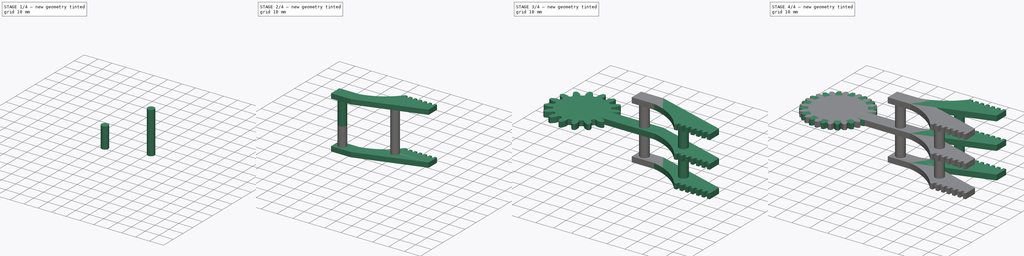
[diagram: build sequence overview — one tinted view per stage of 4, left to right]
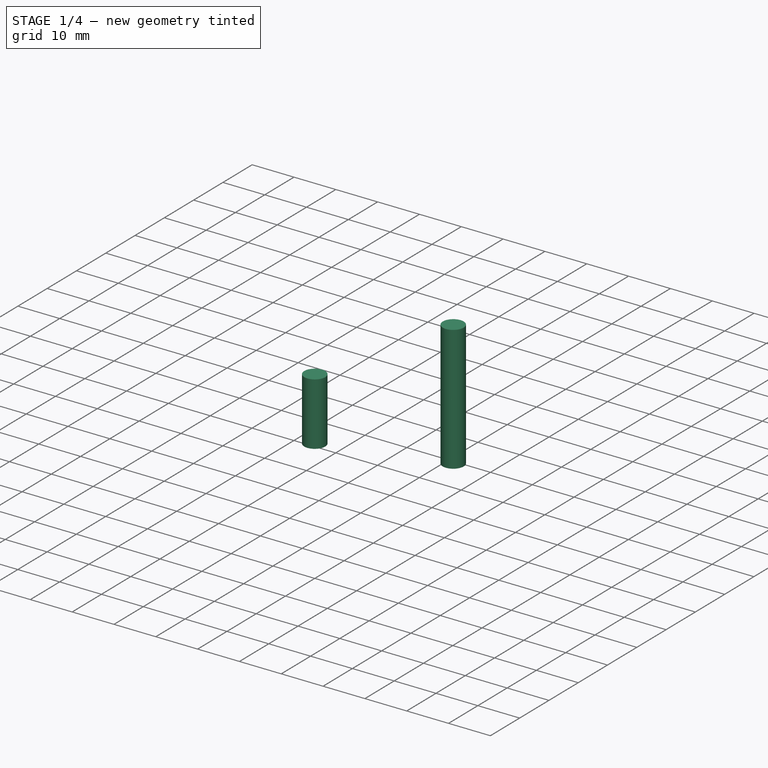
[diagram: stage 1 of 4 — iso view after this stage's code; geometry added in this stage tinted green]
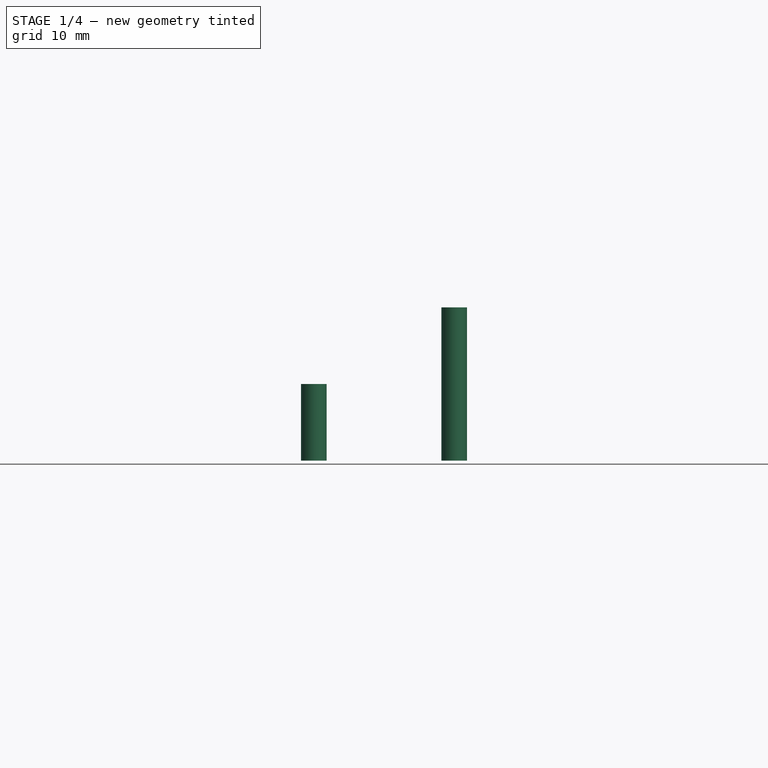
[diagram: stage 1 of 4 — front view after this stage's code; geometry added in this stage tinted green]
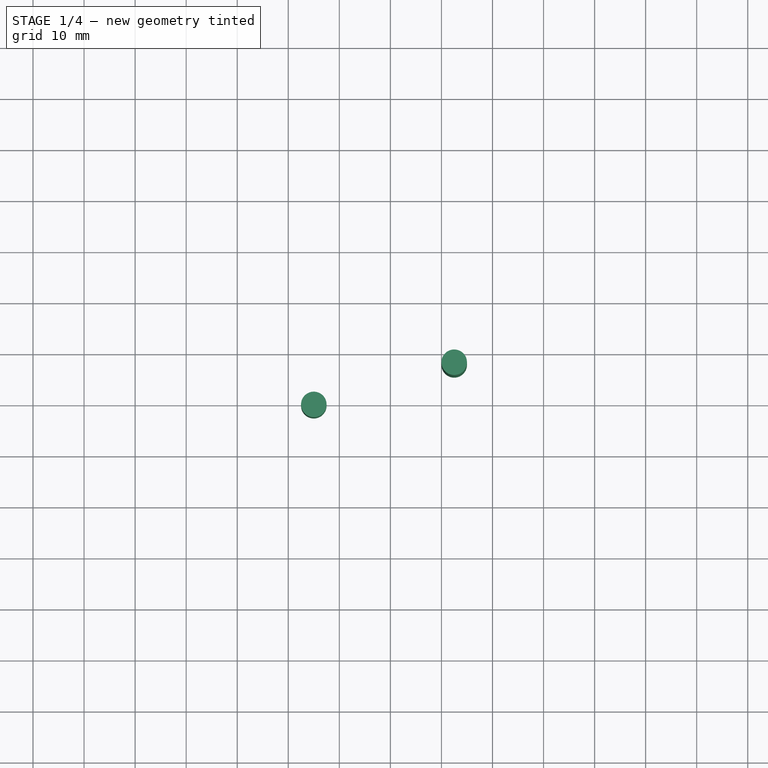
[diagram: stage 1 of 4 — top view after this stage's code; geometry added in this stage tinted green]
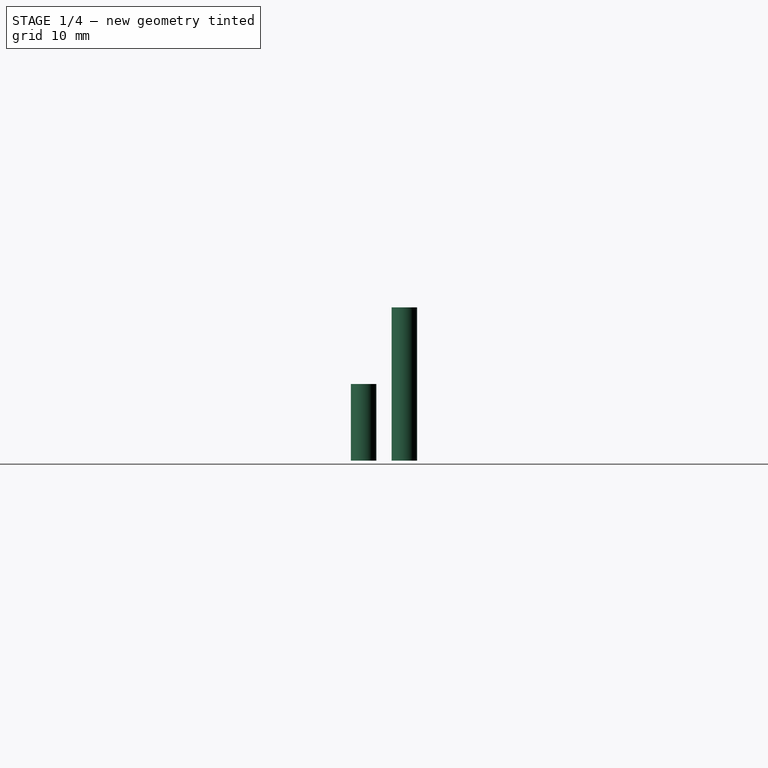
[diagram: stage 1 of 4 — right view after this stage's code; geometry added in this stage tinted green]
FCSTD DOCUMENT  (FreeCAD 0.15R4671 (Git))
Label: hand
License: All rights reserved
LicenseURL: http://en.wikipedia.org/wiki/All_rights_reserved
objects: PartDesign::Pad×9, Sketcher::SketchObject×8, Part::MultiFuse×3, Part::Part2DObjectPython×2, Part::Mirroring×1
note: 32 computed .brp shape members not serialized (recipe doc carries the construction recipe); baked Part::Feature solids carry a one-line shape summary decoded from their .brp

FEATURE [PartDesign::Pad] Pad010
  Length = 15
  Length2 = 100
  Placement = pos=(0,0,-15) rot=(0,0,1;0rad)
  Sketch = -> Sketch006
  Type = 0
FEATURE [Sketcher::SketchObject] Sketch007
  sketch-geometry (2):
    g0: GeomPoint [constr] X=62.5 Y=8 Z=0
    g1: Circle CenterX=62.5 CenterY=8 CenterZ=0 NormalX=0 NormalY=0 NormalZ=1 Radius=2.5
  constraints (4):
    c: DistanceX(g-1,g0) = 62.5
    c: DistanceY(g-1,g0) = 8
    c: Radius(g1) = 2.5
    c: Coincident(g1,g0)
FEATURE [Sketcher::SketchObject] Sketch008
  Placement = pos=(0,0,-15) rot=(0,0,1;0rad)
  sketch-geometry (2):
    g0: GeomPoint [constr] X=62.5 Y=8 Z=0
    g1: Circle CenterX=62.5 CenterY=8 CenterZ=0 NormalX=0 NormalY=0 NormalZ=1 Radius=2.5
  constraints (4):
    c: DistanceX(g-1,g0) = 62.5
    c: DistanceY(g-1,g0) = 8
    c: Radius(g1) = 2.5
    c: Coincident(g1,g0)
FEATURE [PartDesign::Pad] Pad011
  Length = 15
  Length2 = 100
  Sketch = -> Sketch007
  Type = 0
FEATURE [PartDesign::Pad] Pad012
  Length = 15
  Length2 = 100
  Placement = pos=(0,0,-15) rot=(0,0,1;0rad)
  Sketch = -> Sketch008
  Type = 0
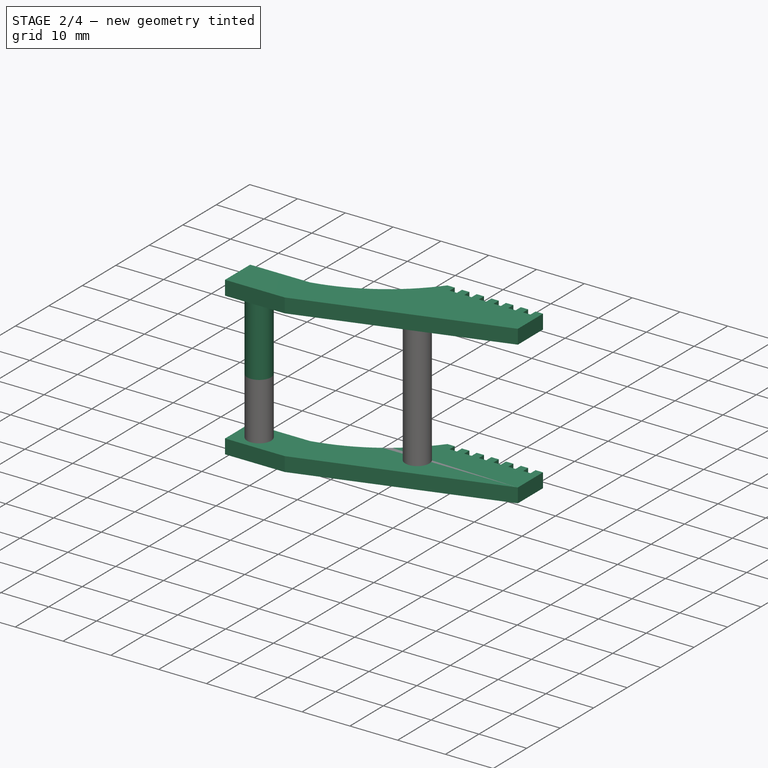
[diagram: stage 2 of 4 — iso view after this stage's code; geometry added in this stage tinted green]
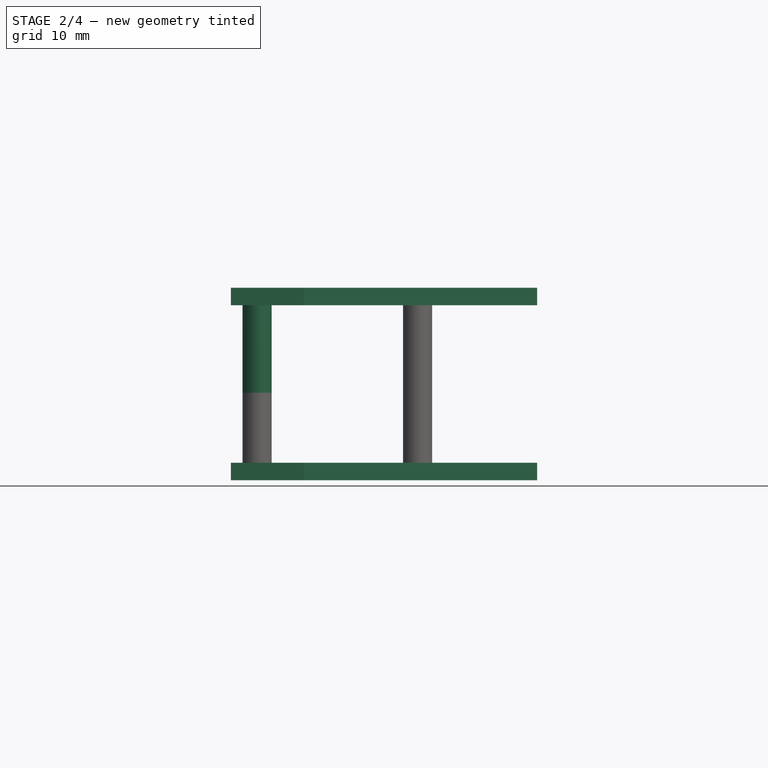
[diagram: stage 2 of 4 — front view after this stage's code; geometry added in this stage tinted green]
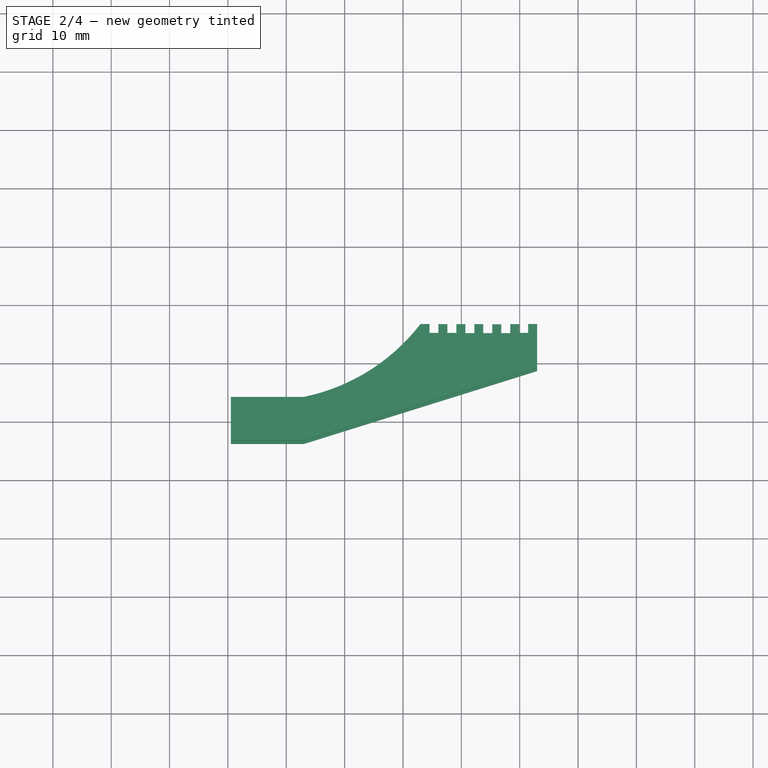
[diagram: stage 2 of 4 — top view after this stage's code; geometry added in this stage tinted green]
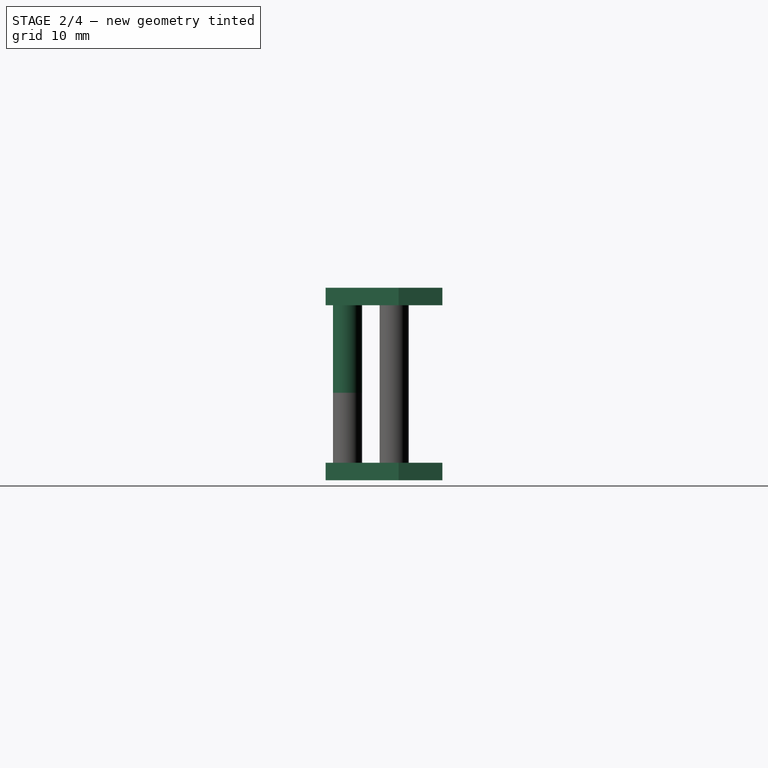
[diagram: stage 2 of 4 — right view after this stage's code; geometry added in this stage tinted green]
FEATURE [Sketcher::SketchObject] Sketch004
  Placement = pos=(0,0,-15) rot=(0,0,1;0rad)
  sketch-geometry (48):
    g0: LineSegment StartX=30.5 StartY=3.75 StartZ=0 EndX=43 EndY=3.75 EndZ=0
    g1: LineSegment [constr] StartX=43 StartY=3.75 StartZ=0 EndX=43 EndY=-3.75 EndZ=0
    g2: LineSegment StartX=43 StartY=-3.75 StartZ=0 EndX=30.5 EndY=-3.75 EndZ=0
    g3: LineSegment StartX=30.5 StartY=-3.75 StartZ=0 EndX=30.5 EndY=3.75 EndZ=0
    g4: GeomPoint [constr] X=83 Y=8.75 Z=0
    g5: LineSegment StartX=83 StartY=8.75 StartZ=0 EndX=43 EndY=-3.75 EndZ=0
    g6: GeomPoint [constr] X=83 Y=16.25 Z=0
    g7: LineSegment StartX=83 StartY=8.75 StartZ=0 EndX=83 EndY=16.25 EndZ=0
    g8: GeomPoint [constr] X=63 Y=16.25 Z=0
    g9: ArcOfCircle CenterX=36.2068 CenterY=36.869 CenterZ=0 NormalX=0 NormalY=0 NormalZ=1 Radius=33.8085 StartAngle=4.9147 EndAngle=5.62728
    g10: GeomPoint [constr] X=64.5388 Y=16.25 Z=0
    g11: GeomPoint [constr] X=66.0768 Y=16.2255 Z=0
    g12: GeomPoint [constr] X=67.6148 Y=16.2255 Z=0
    g13: GeomPoint [constr] X=70.6908 Y=16.2255 Z=0
    g14: GeomPoint [constr] X=72.2288 Y=16.2292 Z=0
    g15: GeomPoint [constr] X=73.7668 Y=16.2292 Z=0
    g16: GeomPoint [constr] X=75.3048 Y=16.1985 Z=0
    g17: GeomPoint [constr] X=76.8428 Y=16.1985 Z=0
    g18: GeomPoint [constr] X=78.3808 Y=16.2336 Z=0
    g19: GeomPoint [constr] X=79.9188 Y=16.2336 Z=0
    g20: GeomPoint [constr] X=81.4568 Y=16.25 Z=0
    g21: GeomPoint [constr] X=64.5388 Y=14.7197 Z=0
    g22: GeomPoint [constr] X=83.7926 Y=12.076 Z=0
    g23: LineSegment StartX=63 StartY=16.25 StartZ=0 EndX=64.5388 EndY=16.25 EndZ=0
    g24: LineSegment StartX=66.0768 StartY=16.2255 StartZ=0 EndX=66.0768 EndY=14.7197 EndZ=0
    g25: LineSegment StartX=67.6148 StartY=16.2255 StartZ=0 EndX=67.6148 EndY=14.7197 EndZ=0
    g26: LineSegment StartX=64.5388 StartY=16.25 StartZ=0 EndX=64.5388 EndY=14.7197 EndZ=0
    g27: LineSegment StartX=69.1528 StartY=16.2255 StartZ=0 EndX=69.1528 EndY=14.7197 EndZ=0
    g28: LineSegment StartX=70.6908 StartY=16.2255 StartZ=0 EndX=70.6908 EndY=14.6814 EndZ=0
    g29: LineSegment StartX=72.2288 StartY=16.2292 StartZ=0 EndX=72.2288 EndY=14.6814 EndZ=0
    g30: LineSegment StartX=73.7668 StartY=16.2292 StartZ=0 EndX=73.7668 EndY=14.6814 EndZ=0
    g31: LineSegment StartX=64.5388 StartY=14.7197 StartZ=0 EndX=66.0768 EndY=14.7197 EndZ=0
    g32: LineSegment StartX=69.1528 StartY=16.2255 StartZ=0 EndX=70.6908 EndY=16.2255 EndZ=0
    g33: LineSegment StartX=72.2288 StartY=16.2292 StartZ=0 EndX=73.7668 EndY=16.2292 EndZ=0
    g34: LineSegment StartX=75.3048 StartY=16.1985 StartZ=0 EndX=76.8428 EndY=16.1985 EndZ=0
    g35: LineSegment StartX=66.0768 StartY=16.2255 StartZ=0 EndX=67.6148 EndY=16.2255 EndZ=0
    g36: LineSegment StartX=78.3808 StartY=16.2336 StartZ=0 EndX=79.9188 EndY=16.2336 EndZ=0
    g37: LineSegment StartX=75.3048 StartY=16.1985 StartZ=0 EndX=75.3048 EndY=14.6814 EndZ=0
    g38: LineSegment StartX=76.8428 StartY=16.1985 StartZ=0 EndX=76.8428 EndY=14.6814 EndZ=0
    g39: LineSegment StartX=78.3808 StartY=16.2336 StartZ=0 EndX=78.3808 EndY=14.6814 EndZ=0
    g40: LineSegment StartX=67.6148 StartY=14.7197 StartZ=0 EndX=69.1528 EndY=14.7197 EndZ=0
    g41: LineSegment StartX=70.6908 StartY=14.6814 StartZ=0 EndX=72.2288 EndY=14.6814 EndZ=0
    g42: LineSegment StartX=73.7668 StartY=14.6814 StartZ=0 EndX=75.3048 EndY=14.6814 EndZ=0
    g43: LineSegment StartX=76.8428 StartY=14.6814 StartZ=0 EndX=78.3808 EndY=14.6814 EndZ=0
    g44: LineSegment StartX=83 StartY=16.25 StartZ=0 EndX=81.4568 EndY=16.25 EndZ=0
    g45: LineSegment StartX=81.4568 StartY=16.25 StartZ=0 EndX=81.4568 EndY=14.7197 EndZ=0
    g46: LineSegment StartX=79.9188 StartY=16.2336 StartZ=0 EndX=79.9188 EndY=14.7197 EndZ=0
    g47: LineSegment StartX=79.9188 StartY=14.7197 StartZ=0 EndX=81.4568 EndY=14.7197 EndZ=0
  constraints (99):
    c: Coincident(g0,g1)
    c: Coincident(g1,g2)
    c: Coincident(g2,g3)
    c: Coincident(g3,g0)
    c: Horizontal(g0)
    c: Horizontal(g2)
    c: Vertical(g1)
    c: Vertical(g3)
    c: DistanceY(g0,g1) = -7.5
    c: DistanceX(g0,g0) = 12.5
    c: DistanceY(g4,g1) = -12.5
    c: Symmetric(g0,g1,g-1)
    c: DistanceX(g4,g1) = -40
    c: Coincident(g5,g4)
    c: Coincident(g5,g1)
    c: DistanceY(g4,g6) = 7.5
    c: Coincident(g7,g4)
    c: Coincident(g7,g6)
    c: Parallel(g7,g1)
    c: DistanceX(g8,g6) = 20
    c: Coincident(g9,g0)
    c: Coincident(g9,g8)
    c: Coincident(g23,g8)
    c: Coincident(g23,g10)
    c: Coincident(g24,g11)
    c: Vertical(g24)
    c: Coincident(g25,g12)
    c: Vertical(g25)
    c: Coincident(g26,g10)
    c: Coincident(g26,g21)
    c: Vertical(g26)
    c: Vertical(g27)
    c: Coincident(g28,g13)
    c: Vertical(g28)
    c: Coincident(g29,g14)
    c: Vertical(g29)
    c: Coincident(g30,g15)
    c: Vertical(g30)
    c: DistanceX(g10,g8) = -1.53878
    c: DistanceX(g10,g11) = 1.538
    c: DistanceX(g11,g12) = 1.538
    c: DistanceX(g12,g27) = 1.538
    c: DistanceX(g27,g13) = 1.538
    c: DistanceX(g13,g14) = 1.538
    c: DistanceX(g14,g15) = 1.538
    c: DistanceX(g15,g16) = 1.538
    c: DistanceX(g16,g17) = 1.538
    c: DistanceX(g17,g18) = 1.538
    c: DistanceX(g18,g19) = 1.538
    c: DistanceX(g19,g20) = 1.538
    c: Coincident(g31,g21)
    c: Coincident(g31,g24)
    c: Horizontal(g31)
    c: Coincident(g32,g13)
    c: Horizontal(g32)
    c: Coincident(g33,g14)
    c: Coincident(g33,g15)
    c: Horizontal(g33)
    c: Coincident(g34,g17)
    c: Horizontal(g34)
    c: Coincident(g35,g11)
    c: Coincident(g35,g12)
    c: Horizontal(g35)
    c: Coincident(g36,g18)
    c: Coincident(g36,g19)
    c: Horizontal(g36)
    c: Coincident(g34,g16)
    c: Coincident(g32,g27)
    c: Coincident(g37,g16)
    c: Vertical(g37)
    c: Coincident(g38,g17)
    c: Vertical(g38)
    c: Coincident(g39,g18)
    c: Vertical(g39)
    c: Coincident(g40,g25)
    c: Coincident(g40,g27)
    c: Horizontal(g40)
    c: Coincident(g41,g29)
    c: Horizontal(g41)
    c: Coincident(g42,g37)
    c: Horizontal(g42)
    c: Coincident(g43,g38)
    c: Coincident(g43,g39)
    c: Horizontal(g43)
    c: Coincident(g30,g42)
    c: Coincident(g41,g28)
    c: Coincident(g44,g6)
    c: Coincident(g44,g20)
    c: Horizontal(g44)
    c: Coincident(g45,g20)
    c: Vertical(g45)
    c: Horizontal(g23)
    c: DistanceY(g8,g0) = -12.5
    c: Coincident(g46,g19)
    c: Vertical(g46)
    c: Coincident(g47,g46)
    c: Coincident(g47,g45)
    c: Horizontal(g47)
    c: DistanceX(g-1,g2) = 30.5
FEATURE [PartDesign::Pad] Pad007
  Length = 3
  Length2 = 100
  Placement = pos=(0,0,15) rot=(0,0,1;0rad)
  Sketch = -> Sketch003
  Type = 0
FEATURE [PartDesign::Pad] Pad008
  Length = 3
  Length2 = 100
  Placement = pos=(0,0,-15) rot=(0,0,1;0rad)
  Sketch = -> Sketch004
  Type = 0
FEATURE [Sketcher::SketchObject] Sketch005
  sketch-geometry (2):
    g0: GeomPoint [constr] X=35 Y=0 Z=0
    g1: Circle CenterX=35 CenterY=0 CenterZ=0 NormalX=0 NormalY=0 NormalZ=1 Radius=2.5
  constraints (4):
    c: PointOnObject(g0,g-1)
    c: DistanceX(g-1,g0) = 35
    c: Coincident(g1,g0)
    c: Radius(g1) = 2.5
FEATURE [Sketcher::SketchObject] Sketch006
  Placement = pos=(0,0,-15) rot=(0,0,1;0rad)
  sketch-geometry (2):
    g0: GeomPoint [constr] X=35 Y=0 Z=0
    g1: Circle CenterX=35 CenterY=0 CenterZ=0 NormalX=0 NormalY=0 NormalZ=1 Radius=2.5
  constraints (4):
    c: PointOnObject(g0,g-1)
    c: DistanceX(g-1,g0) = 35
    c: Coincident(g1,g0)
    c: Radius(g1) = 2.5
FEATURE [PartDesign::Pad] Pad009
  Length = 15
  Length2 = 100
  Sketch = -> Sketch005
  Type = 0
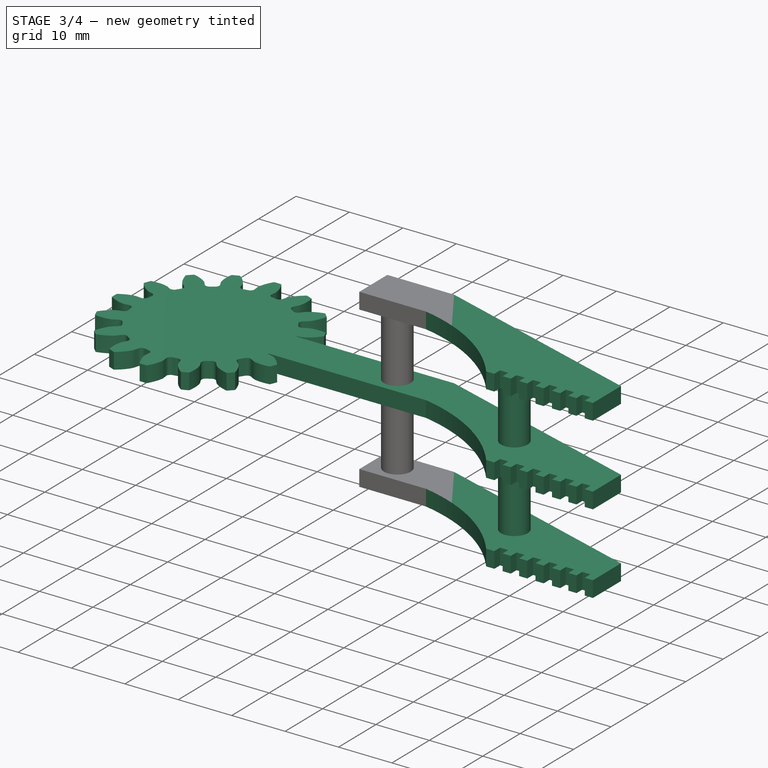
[diagram: stage 3 of 4 — iso view after this stage's code; geometry added in this stage tinted green]
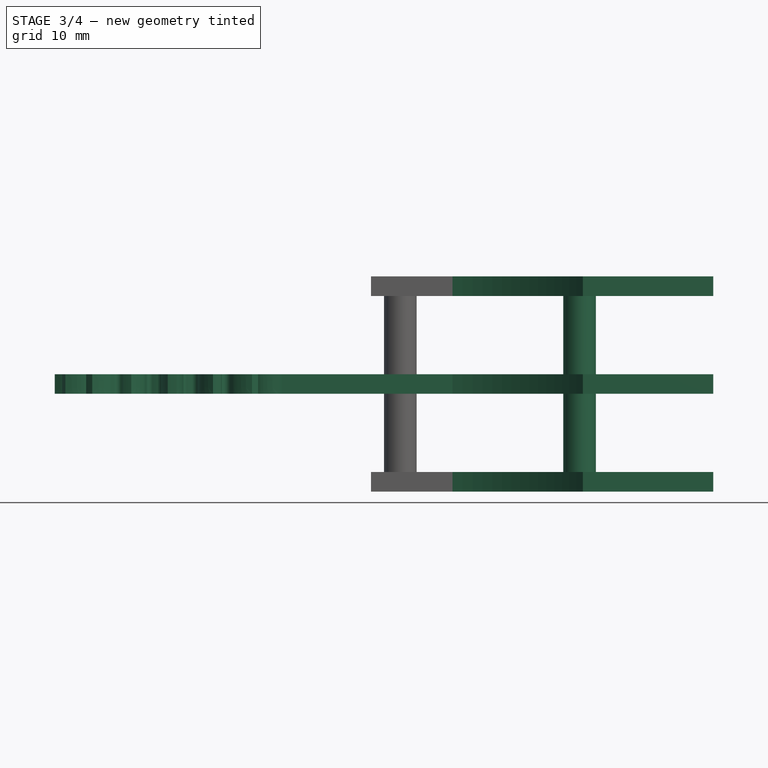
[diagram: stage 3 of 4 — front view after this stage's code; geometry added in this stage tinted green]
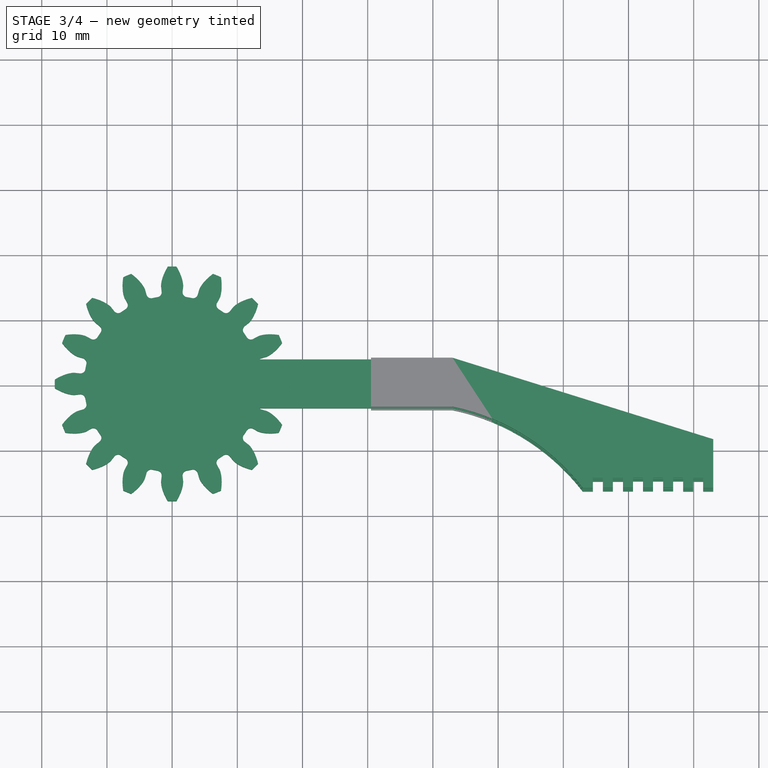
[diagram: stage 3 of 4 — top view after this stage's code; geometry added in this stage tinted green]
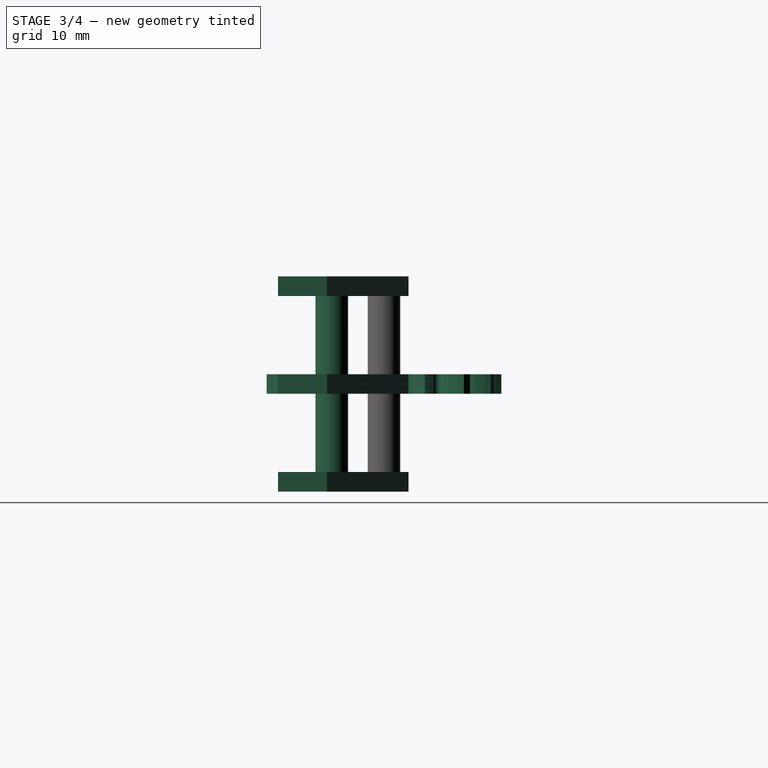
[diagram: stage 3 of 4 — right view after this stage's code; geometry added in this stage tinted green]
FEATURE [Part::Part2DObjectPython] InvoluteGear  # Draft 2D object (typed FeaturePython)
  ExternalGear = true
  HighPrecision = true
  Modules = 2
  NumberOfTeeth = 16
  Placement = pos=(0,0,0) rot=(0,0,1;0.19635rad)
  PressureAngle = 20
FEATURE [Part::Part2DObjectPython] InvoluteGear001  # Draft 2D object (typed FeaturePython)
  ExternalGear = true
  HighPrecision = true
  Modules = 2
  NumberOfTeeth = 16
  PressureAngle = 20
FEATURE [Sketcher::SketchObject] Sketch002
  sketch-geometry (48):
    g0: LineSegment StartX=13 StartY=3.75 StartZ=0 EndX=43 EndY=3.75 EndZ=0
    g1: LineSegment [constr] StartX=43 StartY=3.75 StartZ=0 EndX=43 EndY=-3.75 EndZ=0
    g2: LineSegment StartX=43 StartY=-3.75 StartZ=0 EndX=13 EndY=-3.75 EndZ=0
    g3: LineSegment StartX=13 StartY=-3.75 StartZ=0 EndX=13 EndY=3.75 EndZ=0
    g4: GeomPoint [constr] X=83 Y=8.75 Z=0
    g5: LineSegment StartX=83 StartY=8.75 StartZ=0 EndX=43 EndY=-3.75 EndZ=0
    g6: GeomPoint [constr] X=83 Y=16.25 Z=0
    g7: LineSegment StartX=83 StartY=8.75 StartZ=0 EndX=83 EndY=16.25 EndZ=0
    g8: GeomPoint [constr] X=63 Y=16.25 Z=0
    g9: ArcOfCircle CenterX=36.1751 CenterY=36.9198 CenterZ=0 NormalX=0 NormalY=0 NormalZ=1 Radius=33.8647 StartAngle=4.91531 EndAngle=5.62666
    g10: GeomPoint [constr] X=64.5388 Y=16.25 Z=0
    g11: GeomPoint [constr] X=66.0768 Y=16.2255 Z=0
    g12: GeomPoint [constr] X=67.6148 Y=16.2255 Z=0
    g13: GeomPoint [constr] X=70.6908 Y=16.2255 Z=0
    g14: GeomPoint [constr] X=72.2288 Y=16.2292 Z=0
    g15: GeomPoint [constr] X=73.7668 Y=16.2292 Z=0
    g16: GeomPoint [constr] X=75.3048 Y=16.1985 Z=0
    g17: GeomPoint [constr] X=76.8428 Y=16.1985 Z=0
    g18: GeomPoint [constr] X=78.3808 Y=16.2336 Z=0
    g19: GeomPoint [constr] X=79.9188 Y=16.2336 Z=0
    g20: GeomPoint [constr] X=81.4568 Y=16.25 Z=0
    g21: GeomPoint [constr] X=64.5388 Y=14.7197 Z=0
    g22: GeomPoint [constr] X=83.7926 Y=12.076 Z=0
    g23: LineSegment StartX=63 StartY=16.25 StartZ=0 EndX=64.5388 EndY=16.25 EndZ=0
    g24: LineSegment StartX=66.0768 StartY=16.2255 StartZ=0 EndX=66.0768 EndY=14.7197 EndZ=0
    g25: LineSegment StartX=67.6148 StartY=16.2255 StartZ=0 EndX=67.6148 EndY=14.7197 EndZ=0
    g26: LineSegment StartX=64.5388 StartY=16.25 StartZ=0 EndX=64.5388 EndY=14.7197 EndZ=0
    g27: LineSegment StartX=69.1528 StartY=16.2255 StartZ=0 EndX=69.1528 EndY=14.7197 EndZ=0
    g28: LineSegment StartX=70.6908 StartY=16.2255 StartZ=0 EndX=70.6908 EndY=14.6814 EndZ=0
    g29: LineSegment StartX=72.2288 StartY=16.2292 StartZ=0 EndX=72.2288 EndY=14.6814 EndZ=0
    g30: LineSegment StartX=73.7668 StartY=16.2292 StartZ=0 EndX=73.7668 EndY=14.6814 EndZ=0
    g31: LineSegment StartX=64.5388 StartY=14.7197 StartZ=0 EndX=66.0768 EndY=14.7197 EndZ=0
    g32: LineSegment StartX=69.1528 StartY=16.2255 StartZ=0 EndX=70.6908 EndY=16.2255 EndZ=0
    g33: LineSegment StartX=72.2288 StartY=16.2292 StartZ=0 EndX=73.7668 EndY=16.2292 EndZ=0
    g34: LineSegment StartX=75.3048 StartY=16.1985 StartZ=0 EndX=76.8428 EndY=16.1985 EndZ=0
    g35: LineSegment StartX=66.0768 StartY=16.2255 StartZ=0 EndX=67.6148 EndY=16.2255 EndZ=0
    g36: LineSegment StartX=78.3808 StartY=16.2336 StartZ=0 EndX=79.9188 EndY=16.2336 EndZ=0
    g37: LineSegment StartX=75.3048 StartY=16.1985 StartZ=0 EndX=75.3048 EndY=14.6814 EndZ=0
    g38: LineSegment StartX=76.8428 StartY=16.1985 StartZ=0 EndX=76.8428 EndY=14.6814 EndZ=0
    g39: LineSegment StartX=78.3808 StartY=16.2336 StartZ=0 EndX=78.3808 EndY=14.6814 EndZ=0
    g40: LineSegment StartX=67.6148 StartY=14.7197 StartZ=0 EndX=69.1528 EndY=14.7197 EndZ=0
    g41: LineSegment StartX=70.6908 StartY=14.6814 StartZ=0 EndX=72.2288 EndY=14.6814 EndZ=0
    g42: LineSegment StartX=73.7668 StartY=14.6814 StartZ=0 EndX=75.3048 EndY=14.6814 EndZ=0
    g43: LineSegment StartX=76.8428 StartY=14.6814 StartZ=0 EndX=78.3808 EndY=14.6814 EndZ=0
    g44: LineSegment StartX=83 StartY=16.25 StartZ=0 EndX=81.4568 EndY=16.25 EndZ=0
    g45: LineSegment StartX=81.4568 StartY=16.25 StartZ=0 EndX=81.4568 EndY=14.7197 EndZ=0
    g46: LineSegment StartX=79.9188 StartY=16.2336 StartZ=0 EndX=79.9188 EndY=14.7197 EndZ=0
    g47: LineSegment StartX=79.9188 StartY=14.7197 StartZ=0 EndX=81.4568 EndY=14.7197 EndZ=0
  constraints (99):
    c: Coincident(g0,g1)
    c: Coincident(g1,g2)
    c: Coincident(g2,g3)
    c: Coincident(g3,g0)
    c: Horizontal(g0)
    c: Horizontal(g2)
    c: Vertical(g1)
    c: Vertical(g3)
    c: DistanceY(g0,g1) = -7.5
    c: DistanceX(g0,g0) = 30
    c: DistanceY(g4,g1) = -12.5
    c: Symmetric(g0,g1,g-1)
    c: DistanceX(g4,g1) = -40
    c: Coincident(g5,g4)
    c: Coincident(g5,g1)
    c: DistanceY(g4,g6) = 7.5
    c: Coincident(g7,g4)
    c: Coincident(g7,g6)
    c: Parallel(g7,g1)
    c: DistanceX(g8,g6) = 20
    c: Coincident(g9,g0)
    c: Coincident(g9,g8)
    c: Coincident(g23,g8)
    c: Coincident(g23,g10)
    c: Coincident(g24,g11)
    c: Vertical(g24)
    c: Coincident(g25,g12)
    c: Vertical(g25)
    c: Coincident(g26,g10)
    c: Coincident(g26,g21)
    c: Vertical(g26)
    c: Vertical(g27)
    c: Coincident(g28,g13)
    c: Vertical(g28)
    c: Coincident(g29,g14)
    c: Vertical(g29)
    c: Coincident(g30,g15)
    c: Vertical(g30)
    c: DistanceX(g10,g8) = -1.53878
    c: DistanceX(g10,g11) = 1.538
    c: DistanceX(g11,g12) = 1.538
    c: DistanceX(g12,g27) = 1.538
    c: DistanceX(g27,g13) = 1.538
    c: DistanceX(g13,g14) = 1.538
    c: DistanceX(g14,g15) = 1.538
    c: DistanceX(g15,g16) = 1.538
    c: DistanceX(g16,g17) = 1.538
    c: DistanceX(g17,g18) = 1.538
    c: DistanceX(g18,g19) = 1.538
    c: DistanceX(g19,g20) = 1.538
    c: Coincident(g31,g21)
    c: Coincident(g31,g24)
    c: Horizontal(g31)
    c: Coincident(g32,g13)
    c: Horizontal(g32)
    c: Coincident(g33,g14)
    c: Coincident(g33,g15)
    c: Horizontal(g33)
    c: Coincident(g34,g17)
    c: Horizontal(g34)
    c: Coincident(g35,g11)
    c: Coincident(g35,g12)
    c: Horizontal(g35)
    c: Coincident(g36,g18)
    c: Coincident(g36,g19)
    c: Horizontal(g36)
    c: Coincident(g34,g16)
    c: Coincident(g32,g27)
    c: Coincident(g37,g16)
    c: Vertical(g37)
    c: Coincident(g38,g17)
    c: Vertical(g38)
    c: Coincident(g39,g18)
    c: Vertical(g39)
    c: Coincident(g40,g25)
    c: Coincident(g40,g27)
    c: Horizontal(g40)
    c: Coincident(g41,g29)
    c: Horizontal(g41)
    c: Coincident(g42,g37)
    c: Horizontal(g42)
    c: Coincident(g43,g38)
    c: Coincident(g43,g39)
    c: Horizontal(g43)
    c: Coincident(g30,g42)
    c: Coincident(g41,g28)
    c: Coincident(g44,g6)
    c: Coincident(g44,g20)
    c: Horizontal(g44)
    c: Coincident(g45,g20)
    c: Vertical(g45)
    c: Horizontal(g23)
    c: DistanceY(g8,g0) = -12.5
    c: Coincident(g46,g19)
    c: Vertical(g46)
    c: Coincident(g47,g46)
    c: Coincident(g47,g45)
    c: Horizontal(g47)
    c: DistanceX(g-1,g2) = 13
FEATURE [PartDesign::Pad] Pad003
  Length = 3
  Length2 = 100
  Sketch = -> InvoluteGear001
  Type = 0
FEATURE [Sketcher::SketchObject] Sketch003
  Placement = pos=(0,0,15) rot=(0,0,1;0rad)
  sketch-geometry (48):
    g0: LineSegment StartX=30.5 StartY=3.75 StartZ=0 EndX=43 EndY=3.75 EndZ=0
    g1: LineSegment [constr] StartX=43 StartY=3.75 StartZ=0 EndX=43 EndY=-3.75 EndZ=0
    g2: LineSegment StartX=43 StartY=-3.75 StartZ=0 EndX=30.5 EndY=-3.75 EndZ=0
    g3: LineSegment StartX=30.5 StartY=-3.75 StartZ=0 EndX=30.5 EndY=3.75 EndZ=0
    g4: GeomPoint [constr] X=83 Y=8.75 Z=0
    g5: LineSegment StartX=83 StartY=8.75 StartZ=0 EndX=43 EndY=-3.75 EndZ=0
    g6: GeomPoint [constr] X=83 Y=16.25 Z=0
    g7: LineSegment StartX=83 StartY=8.75 StartZ=0 EndX=83 EndY=16.25 EndZ=0
    g8: GeomPoint [constr] X=63 Y=16.25 Z=0
    g9: ArcOfCircle CenterX=36.2068 CenterY=36.869 CenterZ=0 NormalX=0 NormalY=0 NormalZ=1 Radius=33.8085 StartAngle=4.9147 EndAngle=5.62728
    g10: GeomPoint [constr] X=64.5388 Y=16.25 Z=0
    g11: GeomPoint [constr] X=66.0768 Y=16.2255 Z=0
    g12: GeomPoint [constr] X=67.6148 Y=16.2255 Z=0
    g13: GeomPoint [constr] X=70.6908 Y=16.2255 Z=0
    g14: GeomPoint [constr] X=72.2288 Y=16.2292 Z=0
    g15: GeomPoint [constr] X=73.7668 Y=16.2292 Z=0
    g16: GeomPoint [constr] X=75.3048 Y=16.1985 Z=0
    g17: GeomPoint [constr] X=76.8428 Y=16.1985 Z=0
    g18: GeomPoint [constr] X=78.3808 Y=16.2336 Z=0
    g19: GeomPoint [constr] X=79.9188 Y=16.2336 Z=0
    g20: GeomPoint [constr] X=81.4568 Y=16.25 Z=0
    g21: GeomPoint [constr] X=64.5388 Y=14.7197 Z=0
    g22: GeomPoint [constr] X=83.7926 Y=12.076 Z=0
    g23: LineSegment StartX=63 StartY=16.25 StartZ=0 EndX=64.5388 EndY=16.25 EndZ=0
    g24: LineSegment StartX=66.0768 StartY=16.2255 StartZ=0 EndX=66.0768 EndY=14.7197 EndZ=0
    g25: LineSegment StartX=67.6148 StartY=16.2255 StartZ=0 EndX=67.6148 EndY=14.7197 EndZ=0
    g26: LineSegment StartX=64.5388 StartY=16.25 StartZ=0 EndX=64.5388 EndY=14.7197 EndZ=0
    g27: LineSegment StartX=69.1528 StartY=16.2255 StartZ=0 EndX=69.1528 EndY=14.7197 EndZ=0
    g28: LineSegment StartX=70.6908 StartY=16.2255 StartZ=0 EndX=70.6908 EndY=14.6814 EndZ=0
    g29: LineSegment StartX=72.2288 StartY=16.2292 StartZ=0 EndX=72.2288 EndY=14.6814 EndZ=0
    g30: LineSegment StartX=73.7668 StartY=16.2292 StartZ=0 EndX=73.7668 EndY=14.6814 EndZ=0
    g31: LineSegment StartX=64.5388 StartY=14.7197 StartZ=0 EndX=66.0768 EndY=14.7197 EndZ=0
    g32: LineSegment StartX=69.1528 StartY=16.2255 StartZ=0 EndX=70.6908 EndY=16.2255 EndZ=0
    g33: LineSegment StartX=72.2288 StartY=16.2292 StartZ=0 EndX=73.7668 EndY=16.2292 EndZ=0
    g34: LineSegment StartX=75.3048 StartY=16.1985 StartZ=0 EndX=76.8428 EndY=16.1985 EndZ=0
    g35: LineSegment StartX=66.0768 StartY=16.2255 StartZ=0 EndX=67.6148 EndY=16.2255 EndZ=0
    g36: LineSegment StartX=78.3808 StartY=16.2336 StartZ=0 EndX=79.9188 EndY=16.2336 EndZ=0
    g37: LineSegment StartX=75.3048 StartY=16.1985 StartZ=0 EndX=75.3048 EndY=14.6814 EndZ=0
    g38: LineSegment StartX=76.8428 StartY=16.1985 StartZ=0 EndX=76.8428 EndY=14.6814 EndZ=0
    g39: LineSegment StartX=78.3808 StartY=16.2336 StartZ=0 EndX=78.3808 EndY=14.6814 EndZ=0
    g40: LineSegment StartX=67.6148 StartY=14.7197 StartZ=0 EndX=69.1528 EndY=14.7197 EndZ=0
    g41: LineSegment StartX=70.6908 StartY=14.6814 StartZ=0 EndX=72.2288 EndY=14.6814 EndZ=0
    g42: LineSegment StartX=73.7668 StartY=14.6814 StartZ=0 EndX=75.3048 EndY=14.6814 EndZ=0
    g43: LineSegment StartX=76.8428 StartY=14.6814 StartZ=0 EndX=78.3808 EndY=14.6814 EndZ=0
    g44: LineSegment StartX=83 StartY=16.25 StartZ=0 EndX=81.4568 EndY=16.25 EndZ=0
    g45: LineSegment StartX=81.4568 StartY=16.25 StartZ=0 EndX=81.4568 EndY=14.7197 EndZ=0
    g46: LineSegment StartX=79.9188 StartY=16.2336 StartZ=0 EndX=79.9188 EndY=14.7197 EndZ=0
    g47: LineSegment StartX=79.9188 StartY=14.7197 StartZ=0 EndX=81.4568 EndY=14.7197 EndZ=0
  constraints (99):
    c: Coincident(g0,g1)
    c: Coincident(g1,g2)
    c: Coincident(g2,g3)
    c: Coincident(g3,g0)
    c: Horizontal(g0)
    c: Horizontal(g2)
    c: Vertical(g1)
    c: Vertical(g3)
    c: DistanceY(g0,g1) = -7.5
    c: DistanceX(g0,g0) = 12.5
    c: DistanceY(g4,g1) = -12.5
    c: Symmetric(g0,g1,g-1)
    c: DistanceX(g4,g1) = -40
    c: Coincident(g5,g4)
    c: Coincident(g5,g1)
    c: DistanceY(g4,g6) = 7.5
    c: Coincident(g7,g4)
    c: Coincident(g7,g6)
    c: Parallel(g7,g1)
    c: DistanceX(g8,g6) = 20
    c: Coincident(g9,g0)
    c: Coincident(g9,g8)
    c: Coincident(g23,g8)
    c: Coincident(g23,g10)
    c: Coincident(g24,g11)
    c: Vertical(g24)
    c: Coincident(g25,g12)
    c: Vertical(g25)
    c: Coincident(g26,g10)
    c: Coincident(g26,g21)
    c: Vertical(g26)
    c: Vertical(g27)
    c: Coincident(g28,g13)
    c: Vertical(g28)
    c: Coincident(g29,g14)
    c: Vertical(g29)
    c: Coincident(g30,g15)
    c: Vertical(g30)
    c: DistanceX(g10,g8) = -1.53878
    c: DistanceX(g10,g11) = 1.538
    c: DistanceX(g11,g12) = 1.538
    c: DistanceX(g12,g27) = 1.538
    c: DistanceX(g27,g13) = 1.538
    c: DistanceX(g13,g14) = 1.538
    c: DistanceX(g14,g15) = 1.538
    c: DistanceX(g15,g16) = 1.538
    c: DistanceX(g16,g17) = 1.538
    c: DistanceX(g17,g18) = 1.538
    c: DistanceX(g18,g19) = 1.538
    c: DistanceX(g19,g20) = 1.538
    c: Coincident(g31,g21)
    c: Coincident(g31,g24)
    c: Horizontal(g31)
    c: Coincident(g32,g13)
    c: Horizontal(g32)
    c: Coincident(g33,g14)
    c: Coincident(g33,g15)
    c: Horizontal(g33)
    c: Coincident(g34,g17)
    c: Horizontal(g34)
    c: Coincident(g35,g11)
    c: Coincident(g35,g12)
    c: Horizontal(g35)
    c: Coincident(g36,g18)
    c: Coincident(g36,g19)
    c: Horizontal(g36)
    c: Coincident(g34,g16)
    c: Coincident(g32,g27)
    c: Coincident(g37,g16)
    c: Vertical(g37)
    c: Coincident(g38,g17)
    c: Vertical(g38)
    c: Coincident(g39,g18)
    c: Vertical(g39)
    c: Coincident(g40,g25)
    c: Coincident(g40,g27)
    c: Horizontal(g40)
    c: Coincident(g41,g29)
    c: Horizontal(g41)
    c: Coincident(g42,g37)
    c: Horizontal(g42)
    c: Coincident(g43,g38)
    c: Coincident(g43,g39)
    c: Horizontal(g43)
    c: Coincident(g30,g42)
    c: Coincident(g41,g28)
    c: Coincident(g44,g6)
    c: Coincident(g44,g20)
    c: Horizontal(g44)
    c: Coincident(g45,g20)
    c: Vertical(g45)
    c: Horizontal(g23)
    c: DistanceY(g8,g0) = -12.5
    c: Coincident(g46,g19)
    c: Vertical(g46)
    c: Coincident(g47,g46)
    c: Coincident(g47,g45)
    c: Horizontal(g47)
    c: DistanceX(g-1,g2) = 30.5
FEATURE [PartDesign::Pad] Pad006
  Length = 3
  Length2 = 100
  Sketch = -> Sketch002
  Type = 0
FEATURE [Part::MultiFuse] Fusion
  Shapes = -> [Pad012,Pad010,Pad008,Pad009,Pad011,Pad006,Pad007]
FEATURE [Part::Mirroring] Part__Mirroring001  label="Fusion (Mirror #2)"
  Base = (0,0,0)
  Normal = (0,1,0)
  Source = -> Fusion
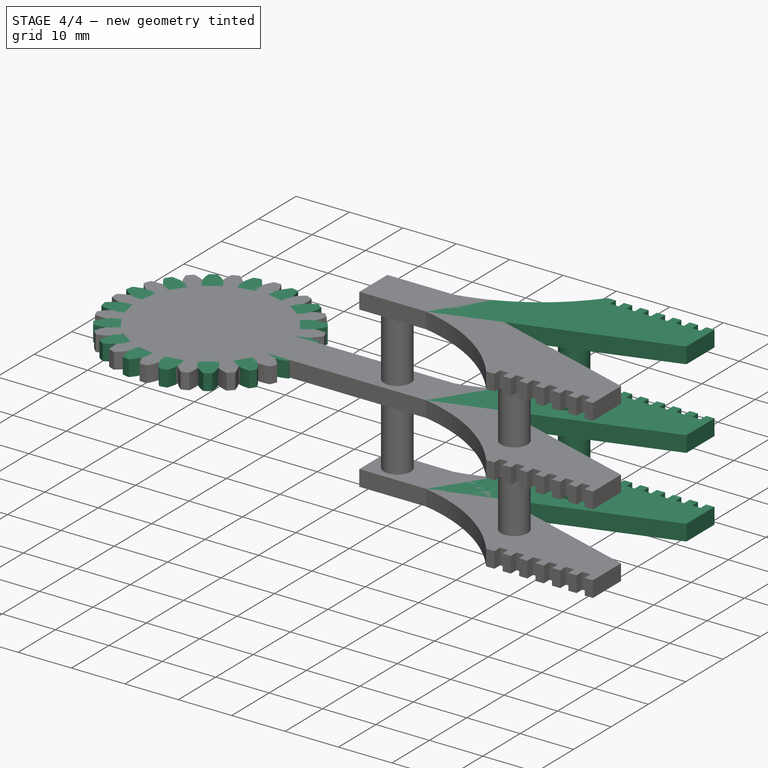
[diagram: stage 4 of 4 — iso view after this stage's code; geometry added in this stage tinted green]
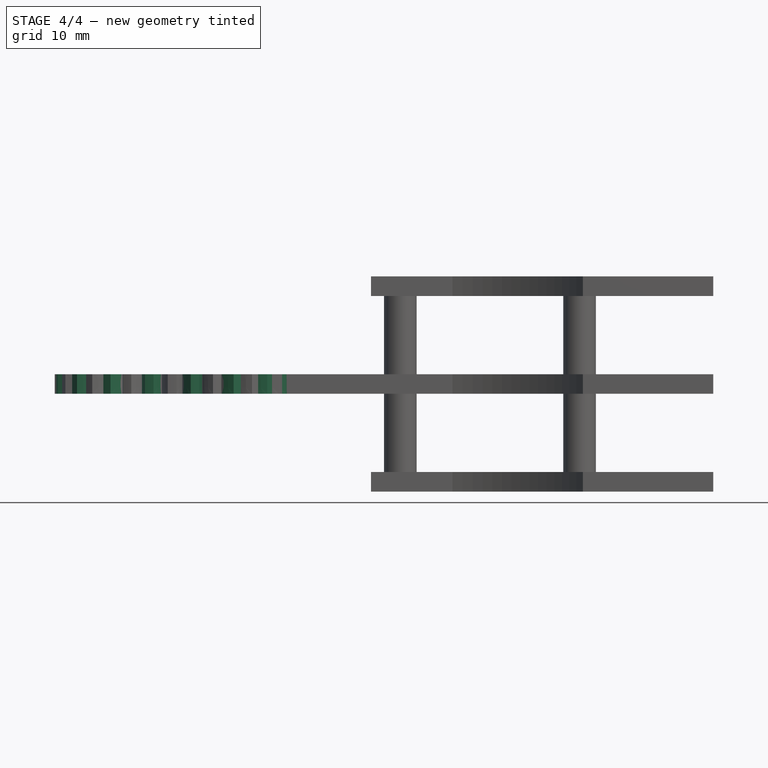
[diagram: stage 4 of 4 — front view after this stage's code; geometry added in this stage tinted green]
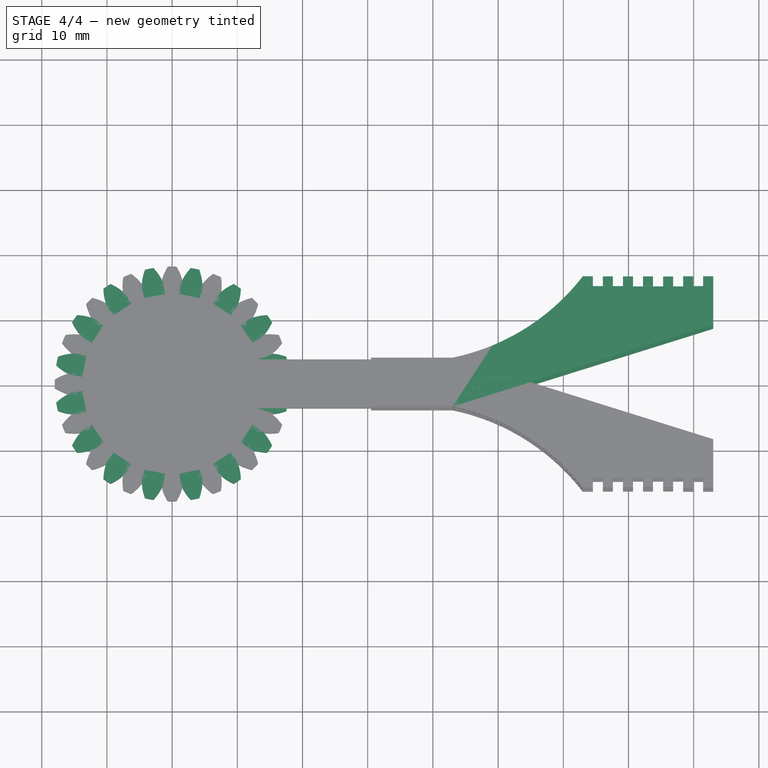
[diagram: stage 4 of 4 — top view after this stage's code; geometry added in this stage tinted green]
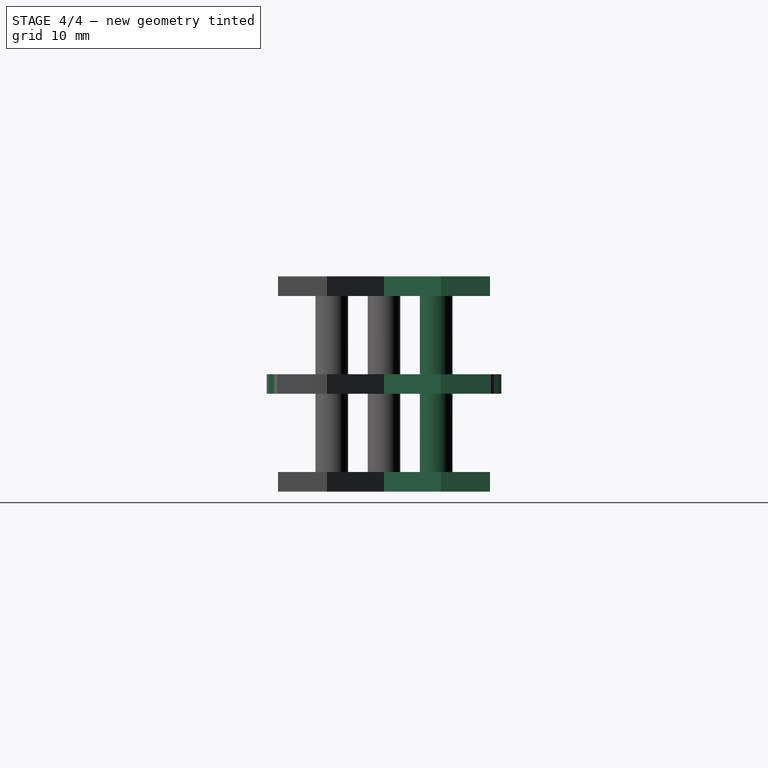
[diagram: stage 4 of 4 — right view after this stage's code; geometry added in this stage tinted green]
FEATURE [Sketcher::SketchObject] Sketch
  sketch-geometry (48):
    g0: LineSegment StartX=13 StartY=3.75 StartZ=0 EndX=43 EndY=3.75 EndZ=0
    g1: LineSegment [constr] StartX=43 StartY=3.75 StartZ=0 EndX=43 EndY=-3.75 EndZ=0
    g2: LineSegment StartX=43 StartY=-3.75 StartZ=0 EndX=13 EndY=-3.75 EndZ=0
    g3: LineSegment StartX=13 StartY=-3.75 StartZ=0 EndX=13 EndY=3.75 EndZ=0
    g4: GeomPoint [constr] X=83 Y=8.75 Z=0
    g5: LineSegment StartX=83 StartY=8.75 StartZ=0 EndX=43 EndY=-3.75 EndZ=0
    g6: GeomPoint [constr] X=83 Y=16.25 Z=0
    g7: LineSegment StartX=83 StartY=8.75 StartZ=0 EndX=83 EndY=16.25 EndZ=0
    g8: GeomPoint [constr] X=63 Y=16.25 Z=0
    g9: ArcOfCircle CenterX=36.1751 CenterY=36.9198 CenterZ=0 NormalX=0 NormalY=0 NormalZ=1 Radius=33.8647 StartAngle=4.91531 EndAngle=5.62666
    g10: GeomPoint [constr] X=64.5388 Y=16.25 Z=0
    g11: GeomPoint [constr] X=66.0768 Y=16.2255 Z=0
    g12: GeomPoint [constr] X=67.6148 Y=16.2255 Z=0
    g13: GeomPoint [constr] X=70.6908 Y=16.2255 Z=0
    g14: GeomPoint [constr] X=72.2288 Y=16.2292 Z=0
    g15: GeomPoint [constr] X=73.7668 Y=16.2292 Z=0
    g16: GeomPoint [constr] X=75.3048 Y=16.1985 Z=0
    g17: GeomPoint [constr] X=76.8428 Y=16.1985 Z=0
    g18: GeomPoint [constr] X=78.3808 Y=16.2336 Z=0
    g19: GeomPoint [constr] X=79.9188 Y=16.2336 Z=0
    g20: GeomPoint [constr] X=81.4568 Y=16.25 Z=0
    g21: GeomPoint [constr] X=64.5388 Y=14.7197 Z=0
    g22: GeomPoint [constr] X=83.7926 Y=12.076 Z=0
    g23: LineSegment StartX=63 StartY=16.25 StartZ=0 EndX=64.5388 EndY=16.25 EndZ=0
    g24: LineSegment StartX=66.0768 StartY=16.2255 StartZ=0 EndX=66.0768 EndY=14.7197 EndZ=0
    g25: LineSegment StartX=67.6148 StartY=16.2255 StartZ=0 EndX=67.6148 EndY=14.7197 EndZ=0
    g26: LineSegment StartX=64.5388 StartY=16.25 StartZ=0 EndX=64.5388 EndY=14.7197 EndZ=0
    g27: LineSegment StartX=69.1528 StartY=16.2255 StartZ=0 EndX=69.1528 EndY=14.7197 EndZ=0
    g28: LineSegment StartX=70.6908 StartY=16.2255 StartZ=0 EndX=70.6908 EndY=14.6814 EndZ=0
    g29: LineSegment StartX=72.2288 StartY=16.2292 StartZ=0 EndX=72.2288 EndY=14.6814 EndZ=0
    g30: LineSegment StartX=73.7668 StartY=16.2292 StartZ=0 EndX=73.7668 EndY=14.6814 EndZ=0
    g31: LineSegment StartX=64.5388 StartY=14.7197 StartZ=0 EndX=66.0768 EndY=14.7197 EndZ=0
    g32: LineSegment StartX=69.1528 StartY=16.2255 StartZ=0 EndX=70.6908 EndY=16.2255 EndZ=0
    g33: LineSegment StartX=72.2288 StartY=16.2292 StartZ=0 EndX=73.7668 EndY=16.2292 EndZ=0
    g34: LineSegment StartX=75.3048 StartY=16.1985 StartZ=0 EndX=76.8428 EndY=16.1985 EndZ=0
    g35: LineSegment StartX=66.0768 StartY=16.2255 StartZ=0 EndX=67.6148 EndY=16.2255 EndZ=0
    g36: LineSegment StartX=78.3808 StartY=16.2336 StartZ=0 EndX=79.9188 EndY=16.2336 EndZ=0
    g37: LineSegment StartX=75.3048 StartY=16.1985 StartZ=0 EndX=75.3048 EndY=14.6814 EndZ=0
    g38: LineSegment StartX=76.8428 StartY=16.1985 StartZ=0 EndX=76.8428 EndY=14.6814 EndZ=0
    g39: LineSegment StartX=78.3808 StartY=16.2336 StartZ=0 EndX=78.3808 EndY=14.6814 EndZ=0
    g40: LineSegment StartX=67.6148 StartY=14.7197 StartZ=0 EndX=69.1528 EndY=14.7197 EndZ=0
    g41: LineSegment StartX=70.6908 StartY=14.6814 StartZ=0 EndX=72.2288 EndY=14.6814 EndZ=0
    g42: LineSegment StartX=73.7668 StartY=14.6814 StartZ=0 EndX=75.3048 EndY=14.6814 EndZ=0
    g43: LineSegment StartX=76.8428 StartY=14.6814 StartZ=0 EndX=78.3808 EndY=14.6814 EndZ=0
    g44: LineSegment StartX=83 StartY=16.25 StartZ=0 EndX=81.4568 EndY=16.25 EndZ=0
    g45: LineSegment StartX=81.4568 StartY=16.25 StartZ=0 EndX=81.4568 EndY=14.7197 EndZ=0
    g46: LineSegment StartX=79.9188 StartY=16.2336 StartZ=0 EndX=79.9188 EndY=14.7197 EndZ=0
    g47: LineSegment StartX=79.9188 StartY=14.7197 StartZ=0 EndX=81.4568 EndY=14.7197 EndZ=0
  constraints (99):
    c: Coincident(g0,g1)
    c: Coincident(g1,g2)
    c: Coincident(g2,g3)
    c: Coincident(g3,g0)
    c: Horizontal(g0)
    c: Horizontal(g2)
    c: Vertical(g1)
    c: Vertical(g3)
    c: DistanceY(g0,g1) = -7.5
    c: DistanceX(g0,g0) = 30
    c: DistanceY(g4,g1) = -12.5
    c: Symmetric(g0,g1,g-1)
    c: DistanceX(g4,g1) = -40
    c: Coincident(g5,g4)
    c: Coincident(g5,g1)
    c: DistanceY(g4,g6) = 7.5
    c: Coincident(g7,g4)
    c: Coincident(g7,g6)
    c: Parallel(g7,g1)
    c: DistanceX(g8,g6) = 20
    c: Coincident(g9,g0)
    c: Coincident(g9,g8)
    c: Coincident(g23,g8)
    c: Coincident(g23,g10)
    c: Coincident(g24,g11)
    c: Vertical(g24)
    c: Coincident(g25,g12)
    c: Vertical(g25)
    c: Coincident(g26,g10)
    c: Coincident(g26,g21)
    c: Vertical(g26)
    c: Vertical(g27)
    c: Coincident(g28,g13)
    c: Vertical(g28)
    c: Coincident(g29,g14)
    c: Vertical(g29)
    c: Coincident(g30,g15)
    c: Vertical(g30)
    c: DistanceX(g10,g8) = -1.53878
    c: DistanceX(g10,g11) = 1.538
    c: DistanceX(g11,g12) = 1.538
    c: DistanceX(g12,g27) = 1.538
    c: DistanceX(g27,g13) = 1.538
    c: DistanceX(g13,g14) = 1.538
    c: DistanceX(g14,g15) = 1.538
    c: DistanceX(g15,g16) = 1.538
    c: DistanceX(g16,g17) = 1.538
    c: DistanceX(g17,g18) = 1.538
    c: DistanceX(g18,g19) = 1.538
    c: DistanceX(g19,g20) = 1.538
    c: Coincident(g31,g21)
    c: Coincident(g31,g24)
    c: Horizontal(g31)
    c: Coincident(g32,g13)
    c: Horizontal(g32)
    c: Coincident(g33,g14)
    c: Coincident(g33,g15)
    c: Horizontal(g33)
    c: Coincident(g34,g17)
    c: Horizontal(g34)
    c: Coincident(g35,g11)
    c: Coincident(g35,g12)
    c: Horizontal(g35)
    c: Coincident(g36,g18)
    c: Coincident(g36,g19)
    c: Horizontal(g36)
    c: Coincident(g34,g16)
    c: Coincident(g32,g27)
    c: Coincident(g37,g16)
    c: Vertical(g37)
    c: Coincident(g38,g17)
    c: Vertical(g38)
    c: Coincident(g39,g18)
    c: Vertical(g39)
    c: Coincident(g40,g25)
    c: Coincident(g40,g27)
    c: Horizontal(g40)
    c: Coincident(g41,g29)
    c: Horizontal(g41)
    c: Coincident(g42,g37)
    c: Horizontal(g42)
    c: Coincident(g43,g38)
    c: Coincident(g43,g39)
    c: Horizontal(g43)
    c: Coincident(g30,g42)
    c: Coincident(g41,g28)
    c: Coincident(g44,g6)
    c: Coincident(g44,g20)
    c: Horizontal(g44)
    c: Coincident(g45,g20)
    c: Vertical(g45)
    c: Horizontal(g23)
    c: DistanceY(g8,g0) = -12.5
    c: Coincident(g46,g19)
    c: Vertical(g46)
    c: Coincident(g47,g46)
    c: Coincident(g47,g45)
    c: Horizontal(g47)
    c: DistanceX(g-1,g2) = 13
FEATURE [PartDesign::Pad] Pad
  Length = 3
  Length2 = 100
  Placement = pos=(0,0,0) rot=(0,0,1;0.19635rad)
  Sketch = -> InvoluteGear
  Type = 0
FEATURE [Part::MultiFuse] Fusion002  label="right_hand"
  Shapes = -> [Fusion,Pad]
FEATURE [Part::MultiFuse] Fusion003  label="left_hand"
  Shapes = -> [Pad003,Part__Mirroring001]
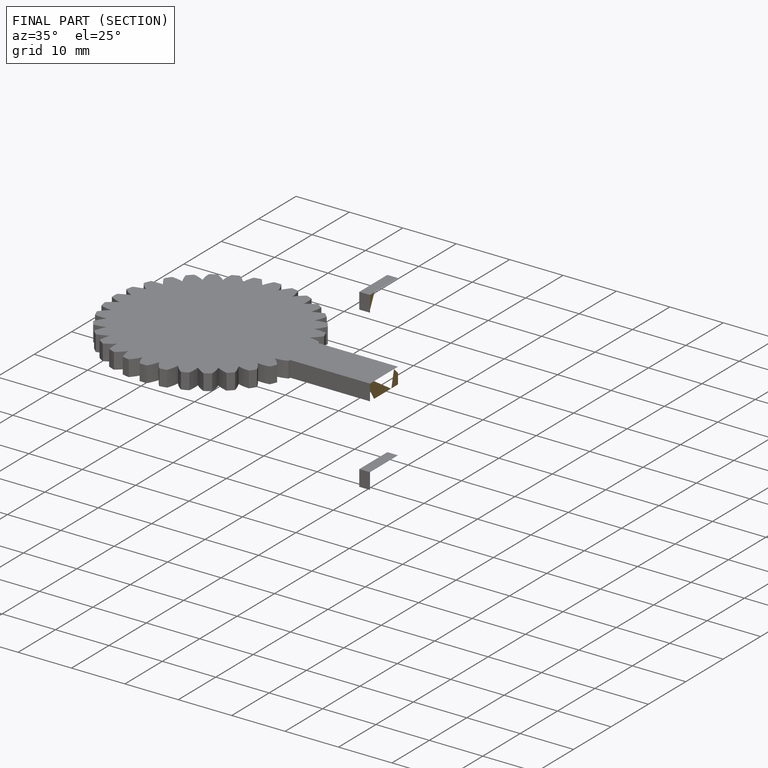
[diagram: finished part — half-section view (interior)]
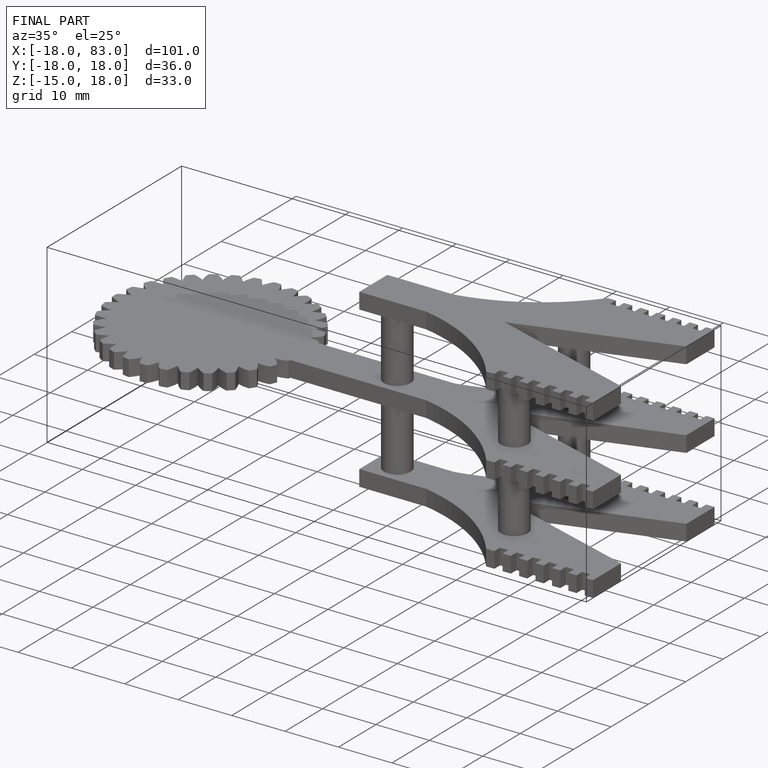
[diagram: finished part — iso view with bounding-box wireframe]
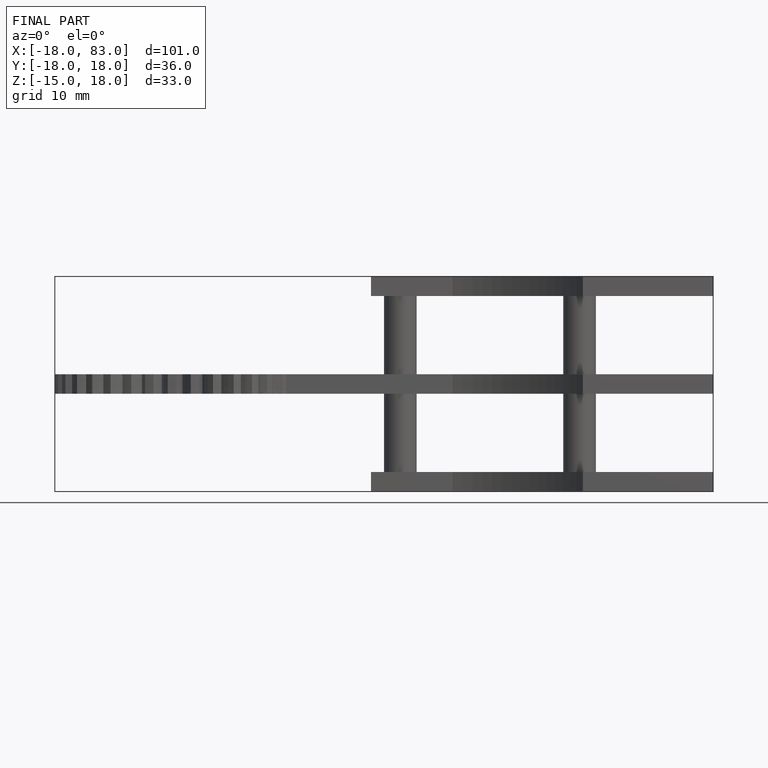
[diagram: finished part — front view with bounding-box wireframe]
